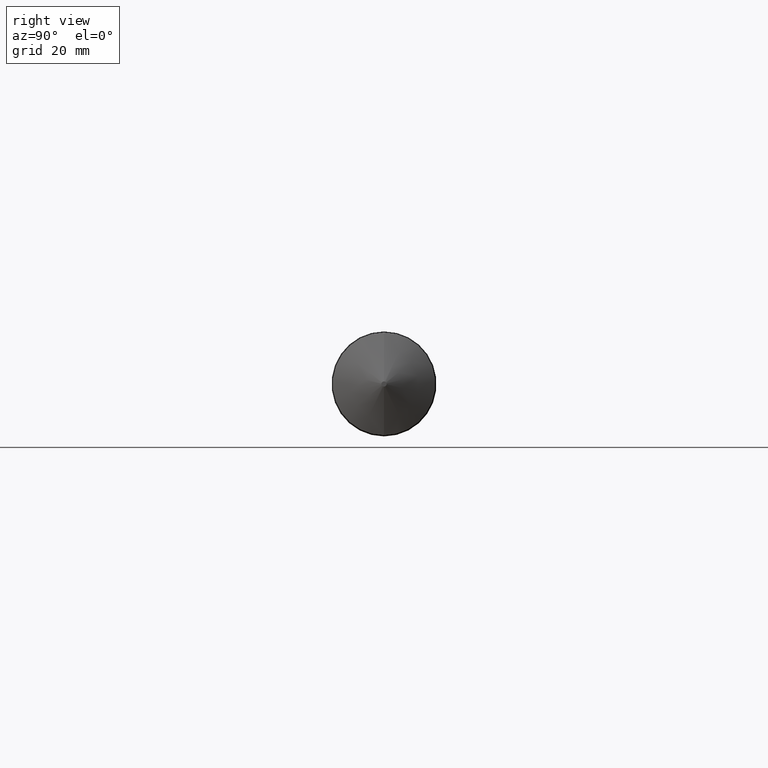
[diagram: clean part render]
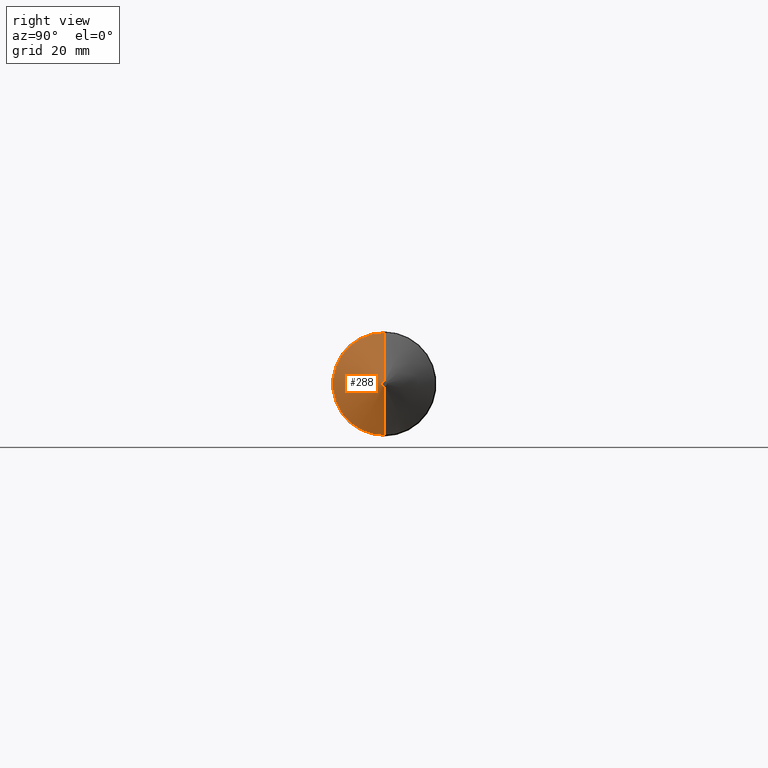
[diagram: same view with one face highlighted and labeled with its STEP entity id]
A machine part, right view. The second image highlights one B-rep face of the part: STEP entity #288.
In plain terms, the highlighted conical surface has half-angle 70 deg.
Its self-contained STEP definition (entity closure, byte-faithful):
#17 = CARTESIAN_POINT ( 'NONE',  ( 4.842519685039370358, 0.000000000000000000, 0.000000000000000000 ) ) ;
#46 = DIRECTION ( 'NONE',  ( -0.3420201433256673806, 1.150791560227850763E-16, -0.9396926207859088720 ) ) ;
#61 = ORIENTED_EDGE ( 'NONE', *, *, #330, .T. ) ;
#74 = DIRECTION ( 'NONE',  ( 0.000000000000000000, 0.000000000000000000, -1.000000000000000000 ) ) ;
#79 = VERTEX_POINT ( 'NONE', #208 ) ;
#80 = DIRECTION ( 'NONE',  ( 0.000000000000000000, 0.000000000000000000, -1.000000000000000000 ) ) ;
#83 = EDGE_LOOP ( 'NONE', ( #305, #226, #161, #61 ) ) ;
#90 = VECTOR ( 'NONE', #46, 39.37007874015748143 ) ;
#97 = AXIS2_PLACEMENT_3D ( 'NONE', #17, #255, #80 ) ;
#145 = CARTESIAN_POINT ( 'NONE',  ( 4.722773477965789723, 4.243401159045585491E-17, -0.3465000000000006408 ) ) ;
#158 = CARTESIAN_POINT ( 'NONE',  ( 4.722773477965789723, 0.000000000000000000, 0.3465000000000006408 ) ) ;
#160 = VECTOR ( 'NONE', #190, 39.37007874015748143 ) ;
#161 = ORIENTED_EDGE ( 'NONE', *, *, #216, .T. ) ;
#173 = VERTEX_POINT ( 'NONE', #158 ) ;
#175 = CONICAL_SURFACE ( 'NONE', #185, 0.01750000000000059841, 1.221730476396032161 ) ;
#185 = AXIS2_PLACEMENT_3D ( 'NONE', #196, #332, #307 ) ;
#190 = DIRECTION ( 'NONE',  ( -0.3420201433256673806, 0.000000000000000000, 0.9396926207859088720 ) ) ;
#196 = CARTESIAN_POINT ( 'NONE',  ( 4.842519685039370358, 0.000000000000000000, 0.000000000000000000 ) ) ;
#202 = EDGE_CURVE ( 'NONE', #256, #360, #369, .T. ) ;
#208 = CARTESIAN_POINT ( 'NONE',  ( 4.842519685039370358, 0.000000000000000000, 0.01750000000000059841 ) ) ;
#216 = EDGE_CURVE ( 'NONE', #79, #173, #219, .T. ) ;
#219 = LINE ( 'NONE', #227, #160 ) ;
#220 = CIRCLE ( 'NONE', #261, 0.3465000000000005298 ) ;
#225 = CARTESIAN_POINT ( 'NONE',  ( 4.842519685039370358, 2.228857174448189611E-17, -0.01750000000000059841 ) ) ;
#226 = ORIENTED_EDGE ( 'NONE', *, *, #353, .F. ) ;
#227 = CARTESIAN_POINT ( 'NONE',  ( 4.842519685039370358, 0.000000000000000000, 0.01750000000000059841 ) ) ;
#249 = CARTESIAN_POINT ( 'NONE',  ( 4.842519685039370358, 2.143131898507941560E-18, -0.01750000000000059841 ) ) ;
#255 = DIRECTION ( 'NONE',  ( 1.000000000000000000, -0.000000000000000000, -0.000000000000000000 ) ) ;
#256 = VERTEX_POINT ( 'NONE', #225 ) ;
#261 = AXIS2_PLACEMENT_3D ( 'NONE', #335, #274, #74 ) ;
#271 = CIRCLE ( 'NONE', #97, 0.01750000000000059841 ) ;
#274 = DIRECTION ( 'NONE',  ( 1.000000000000000000, -0.000000000000000000, -0.000000000000000000 ) ) ;
#288 = ADVANCED_FACE ( 'NONE', ( #361 ), #175, .T. ) ;
#305 = ORIENTED_EDGE ( 'NONE', *, *, #202, .F. ) ;
#307 = DIRECTION ( 'NONE',  ( 0.000000000000000000, 0.000000000000000000, 1.000000000000000000 ) ) ;
#330 = EDGE_CURVE ( 'NONE', #173, #360, #220, .T. ) ;
#332 = DIRECTION ( 'NONE',  ( -1.000000000000000000, 0.000000000000000000, 0.000000000000000000 ) ) ;
#335 = CARTESIAN_POINT ( 'NONE',  ( 4.722773477965789723, 0.000000000000000000, 0.000000000000000000 ) ) ;
#353 = EDGE_CURVE ( 'NONE', #79, #256, #271, .T. ) ;
#360 = VERTEX_POINT ( 'NONE', #145 ) ;
#361 = FACE_OUTER_BOUND ( 'NONE', #83, .T. ) ;
#369 = LINE ( 'NONE', #249, #90 ) ;